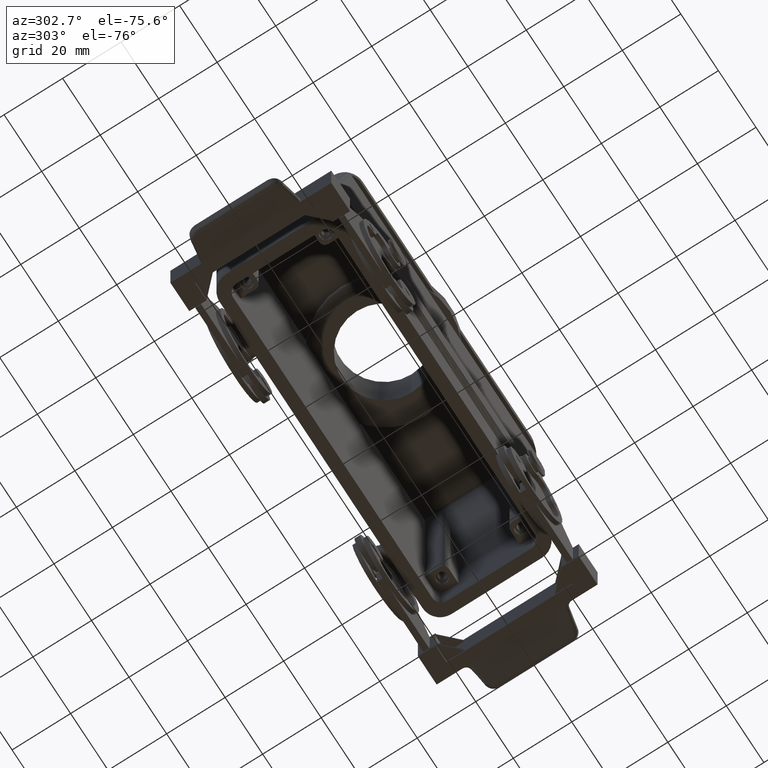
[diagram: clean part render]
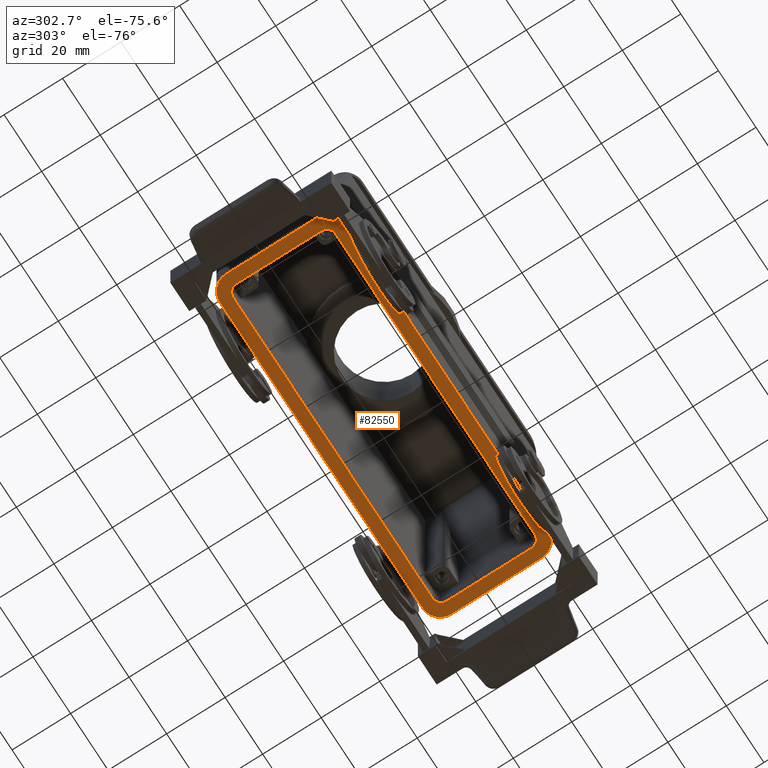
[diagram: same view with one face highlighted and labeled with its STEP entity id]
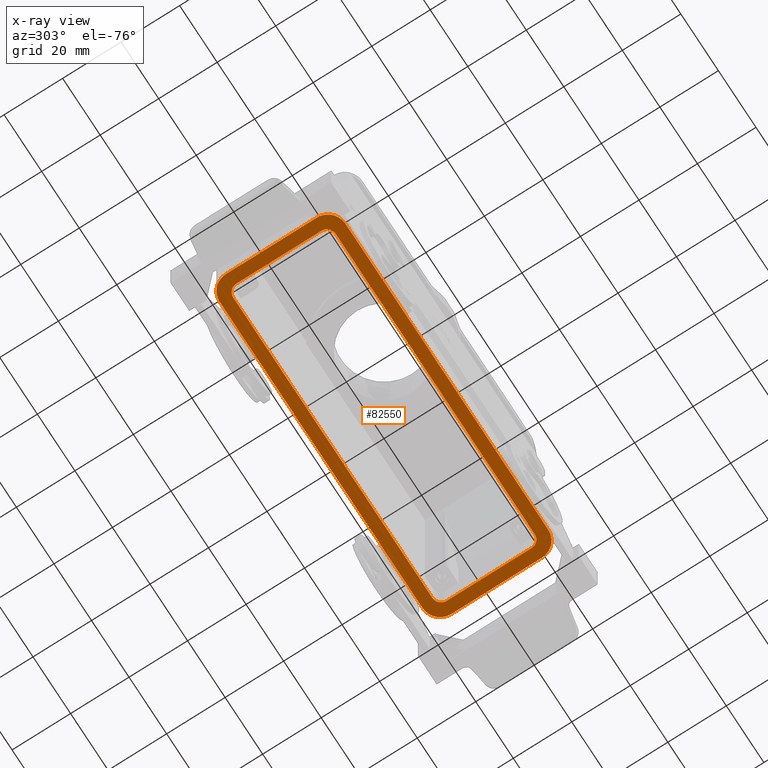
[diagram: x-ray of the same camera — body ghosted, the highlighted face saturated]
A machine part, auxiliary view. The second image highlights one B-rep face of the part: STEP entity #82550.
The next image is the same camera in x-ray: the body ghosted, the highlighted face saturated — about 0% of this face is hidden behind the body in this view.
In plain terms, the highlighted planar face has unit normal (0, 0, -1).
Its self-contained STEP definition (entity closure, byte-faithful):
#26990=CARTESIAN_POINT('',(54.001,21.501,0.));
#27000=VERTEX_POINT('',#26990);
#27050=CARTESIAN_POINT('',(54.,15.5,0.));
#27060=DIRECTION('',(0.,0.,1.));
#27070=DIRECTION('',(1.,0.,-0.));
#27080=AXIS2_PLACEMENT_3D('',#27050,#27060,#27070);
#27090=CIRCLE('',#27080,6.00000000000006);
#27100=CARTESIAN_POINT('',(60.001,15.501,0.));
#27110=VERTEX_POINT('',#27100);
#27120=EDGE_CURVE('',#27110,#27000,#27090,.T.);
#27740=CARTESIAN_POINT('',(-60.001,15.501,0.));
#27750=VERTEX_POINT('',#27740);
#27780=CARTESIAN_POINT('',(-54.,15.5,0.));
#27790=DIRECTION('',(-0.,-0.,1.));
#27800=DIRECTION('',(-1.,0.,0.));
#27810=AXIS2_PLACEMENT_3D('',#27780,#27790,#27800);
#27820=CIRCLE('',#27810,5.99999999999999);
#27830=CARTESIAN_POINT('',(-54.001,21.501,0.));
#27840=VERTEX_POINT('',#27830);
#27850=EDGE_CURVE('',#27840,#27750,#27820,.T.);
#66620=CARTESIAN_POINT('',(60.001,-15.501,0.));
#66630=VERTEX_POINT('',#66620);
#66660=CARTESIAN_POINT('',(54.,-15.5,0.));
#66670=DIRECTION('',(-0.,-0.,1.));
#66680=DIRECTION('',(-1.,0.,0.));
#66690=AXIS2_PLACEMENT_3D('',#66660,#66670,#66680);
#66700=CIRCLE('',#66690,5.99999999999999);
#66710=CARTESIAN_POINT('',(54.001,-21.501,0.));
#66720=VERTEX_POINT('',#66710);
#66730=EDGE_CURVE('',#66720,#66630,#66700,.T.);
#67090=CARTESIAN_POINT('',(-54.001,-21.501,0.));
#67100=VERTEX_POINT('',#67090);
#67150=CARTESIAN_POINT('',(-54.,-15.4999999999999,0.));
#67160=DIRECTION('',(0.,0.,1.));
#67170=DIRECTION('',(1.,0.,-0.));
#67180=AXIS2_PLACEMENT_3D('',#67150,#67160,#67170);
#67190=CIRCLE('',#67180,6.00000000000007);
#67200=CARTESIAN_POINT('',(-60.001,-15.501,0.));
#67210=VERTEX_POINT('',#67200);
#67220=EDGE_CURVE('',#67210,#67100,#67190,.T.);
#68220=CARTESIAN_POINT('',(55.999,-14.499,0.));
#68230=VERTEX_POINT('',#68220);
#68260=CARTESIAN_POINT('',(55.999,0.,-0.));
#68270=DIRECTION('',(-0.,1.,0.));
#68280=VECTOR('',#68270,1.);
#68290=LINE('',#68260,#68280);
#68300=CARTESIAN_POINT('',(55.999,14.499,0.));
#68310=VERTEX_POINT('',#68300);
#68320=EDGE_CURVE('',#68230,#68310,#68290,.T.);
#68770=CARTESIAN_POINT('',(52.999,-17.499,0.));
#68780=VERTEX_POINT('',#68770);
#68810=CARTESIAN_POINT('',(52.999,-14.499,0.));
#68820=DIRECTION('',(0.,0.,1.));
#68830=DIRECTION('',(1.,0.,0.));
#68840=AXIS2_PLACEMENT_3D('',#68810,#68820,#68830);
#68850=CIRCLE('',#68840,3.00000000000002);
#68860=EDGE_CURVE('',#68780,#68230,#68850,.T.);
#69710=CARTESIAN_POINT('',(-52.999,-17.499,0.));
#69720=VERTEX_POINT('',#69710);
#69750=CARTESIAN_POINT('',(0.,-17.499,-0.));
#69760=DIRECTION('',(1.,-0.,0.));
#69770=VECTOR('',#69760,1.);
#69780=LINE('',#69750,#69770);
#69790=EDGE_CURVE('',#69720,#68780,#69780,.T.);
#70190=CARTESIAN_POINT('',(-55.999,-14.499,0.));
#70200=VERTEX_POINT('',#70190);
#70230=CARTESIAN_POINT('',(-52.999,-14.499,0.));
#70240=DIRECTION('',(0.,0.,1.));
#70250=DIRECTION('',(1.,0.,0.));
#70260=AXIS2_PLACEMENT_3D('',#70230,#70240,#70250);
#70270=CIRCLE('',#70260,3.);
#70280=EDGE_CURVE('',#70200,#69720,#70270,.T.);
#70990=CARTESIAN_POINT('',(-55.999,14.499,0.));
#71000=VERTEX_POINT('',#70990);
#71030=CARTESIAN_POINT('',(-55.999,0.,-0.));
#71040=DIRECTION('',(-0.,-1.,-0.));
#71050=VECTOR('',#71040,1.);
#71060=LINE('',#71030,#71050);
#71070=EDGE_CURVE('',#71000,#70200,#71060,.T.);
#71470=CARTESIAN_POINT('',(-52.999,17.499,0.));
#71480=VERTEX_POINT('',#71470);
#71510=CARTESIAN_POINT('',(-52.999,14.499,0.));
#71520=DIRECTION('',(0.,0.,1.));
#71530=DIRECTION('',(1.,0.,0.));
#71540=AXIS2_PLACEMENT_3D('',#71510,#71520,#71530);
#71550=CIRCLE('',#71540,3.00000000000002);
#71560=EDGE_CURVE('',#71480,#71000,#71550,.T.);
#72410=CARTESIAN_POINT('',(52.999,17.499,0.));
#72420=VERTEX_POINT('',#72410);
#72450=CARTESIAN_POINT('',(0.,17.499,0.));
#72460=DIRECTION('',(-1.,-0.,-0.));
#72470=VECTOR('',#72460,1.);
#72480=LINE('',#72450,#72470);
#72490=EDGE_CURVE('',#72420,#71480,#72480,.T.);
#72770=CARTESIAN_POINT('',(52.999,14.499,0.));
#72780=DIRECTION('',(0.,0.,1.));
#72790=DIRECTION('',(1.,0.,0.));
#72800=AXIS2_PLACEMENT_3D('',#72770,#72780,#72790);
#72810=CIRCLE('',#72800,2.99999999999997);
#72820=EDGE_CURVE('',#68310,#72420,#72810,.T.);
#75800=CARTESIAN_POINT('',(60.001,0.,0.));
#75810=DIRECTION('',(0.,1.,0.));
#75820=VECTOR('',#75810,1.);
#75830=LINE('',#75800,#75820);
#75840=EDGE_CURVE('',#66630,#27110,#75830,.T.);
#76940=CARTESIAN_POINT('',(0.,-21.501,-0.));
#76950=DIRECTION('',(1.,0.,0.));
#76960=VECTOR('',#76950,1.);
#76970=LINE('',#76940,#76960);
#76980=EDGE_CURVE('',#67100,#66720,#76970,.T.);
#80450=CARTESIAN_POINT('',(-60.001,0.,-0.));
#80460=DIRECTION('',(0.,-1.,-0.));
#80470=VECTOR('',#80460,1.);
#80480=LINE('',#80450,#80470);
#80490=EDGE_CURVE('',#27750,#67210,#80480,.T.);
#81320=CARTESIAN_POINT('',(0.,21.501,-0.));
#81330=DIRECTION('',(-1.,0.,-0.));
#81340=VECTOR('',#81330,1.);
#81350=LINE('',#81320,#81340);
#81360=EDGE_CURVE('',#27000,#27840,#81350,.T.);
#82300=CARTESIAN_POINT('',(72.0012,-25.8012,0.));
#82310=DIRECTION('',(0.,0.,-1.));
#82320=DIRECTION('',(-1.,0.,-0.));
#82330=AXIS2_PLACEMENT_3D('',#82300,#82310,#82320);
#82340=PLANE('',#82330);
#82350=ORIENTED_EDGE('',*,*,#81360,.F.);
#82360=ORIENTED_EDGE('',*,*,#27850,.F.);
#82370=ORIENTED_EDGE('',*,*,#80490,.F.);
#82380=ORIENTED_EDGE('',*,*,#67220,.F.);
#82390=ORIENTED_EDGE('',*,*,#76980,.F.);
#82400=ORIENTED_EDGE('',*,*,#66730,.F.);
#82410=ORIENTED_EDGE('',*,*,#75840,.F.);
#82420=ORIENTED_EDGE('',*,*,#27120,.F.);
#82430=EDGE_LOOP('',(#82420,#82410,#82400,#82390,#82380,#82370,#82360,
#82350));
#82440=FACE_OUTER_BOUND('',#82430,.T.);
#82450=ORIENTED_EDGE('',*,*,#68860,.T.);
#82460=ORIENTED_EDGE('',*,*,#69790,.T.);
#82470=ORIENTED_EDGE('',*,*,#70280,.T.);
#82480=ORIENTED_EDGE('',*,*,#71070,.T.);
#82490=ORIENTED_EDGE('',*,*,#71560,.T.);
#82500=ORIENTED_EDGE('',*,*,#72490,.T.);
#82510=ORIENTED_EDGE('',*,*,#72820,.T.);
#82520=ORIENTED_EDGE('',*,*,#68320,.T.);
#82530=EDGE_LOOP('',(#82520,#82510,#82500,#82490,#82480,#82470,#82460,
#82450));
#82540=FACE_BOUND('',#82530,.T.);
#82550=ADVANCED_FACE('',(#82440,#82540),#82340,.T.);